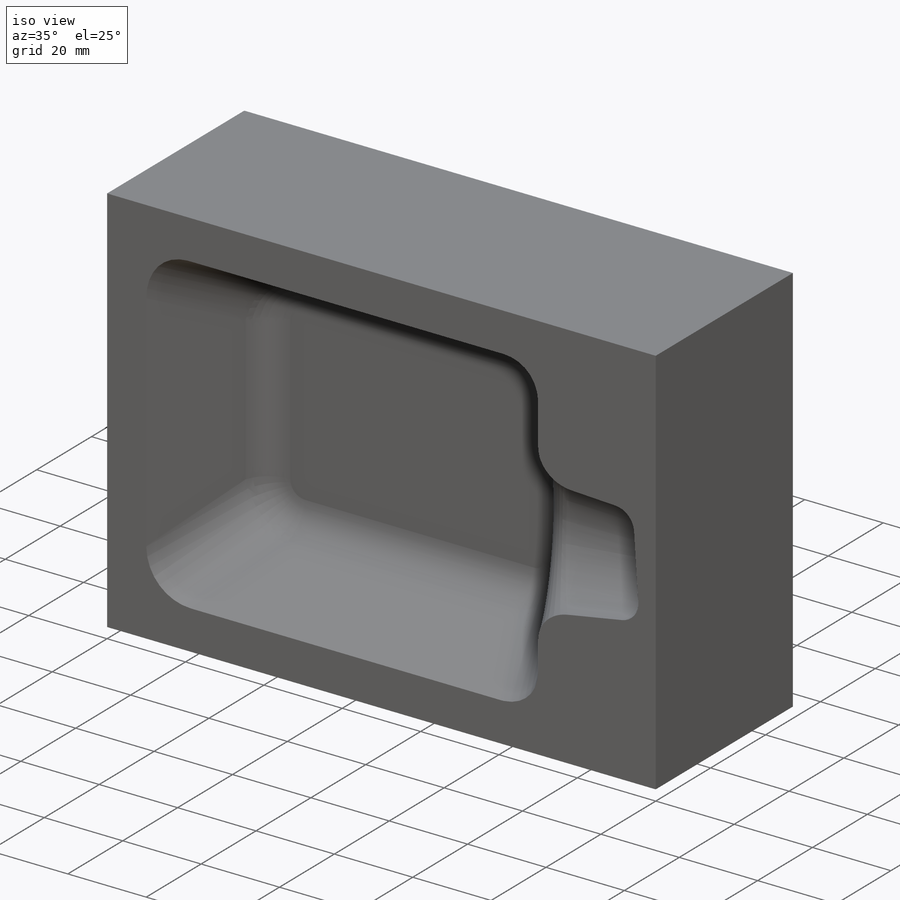
[diagram: iso view]
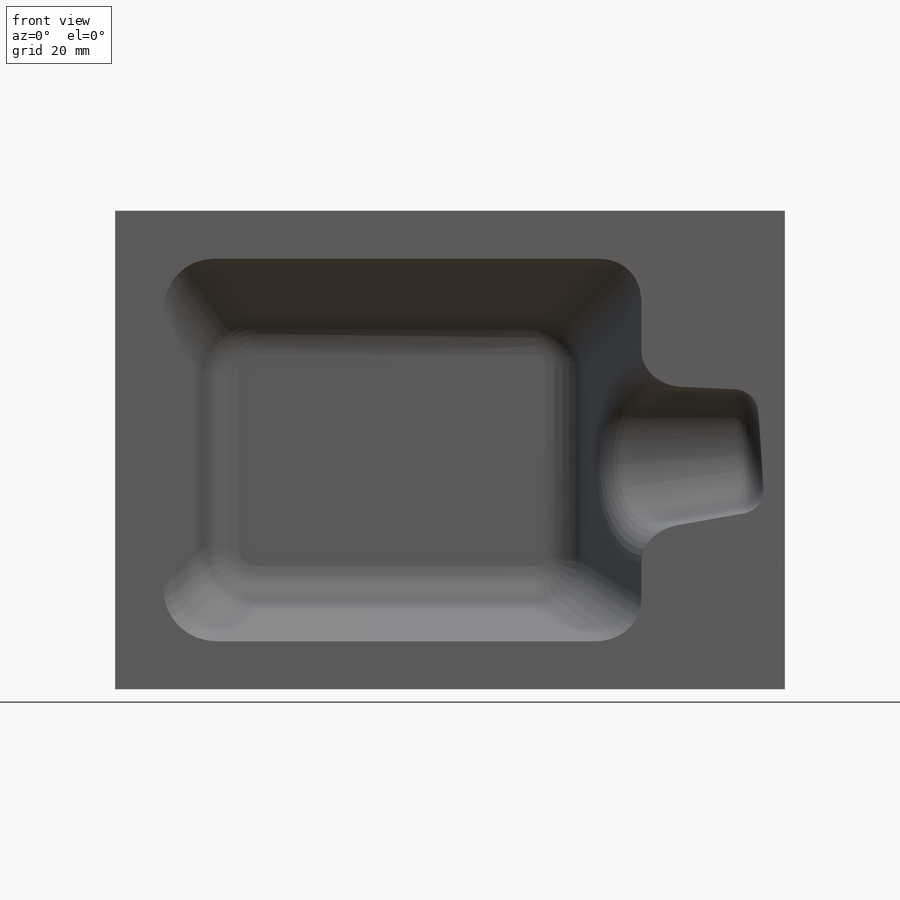
[diagram: front view]
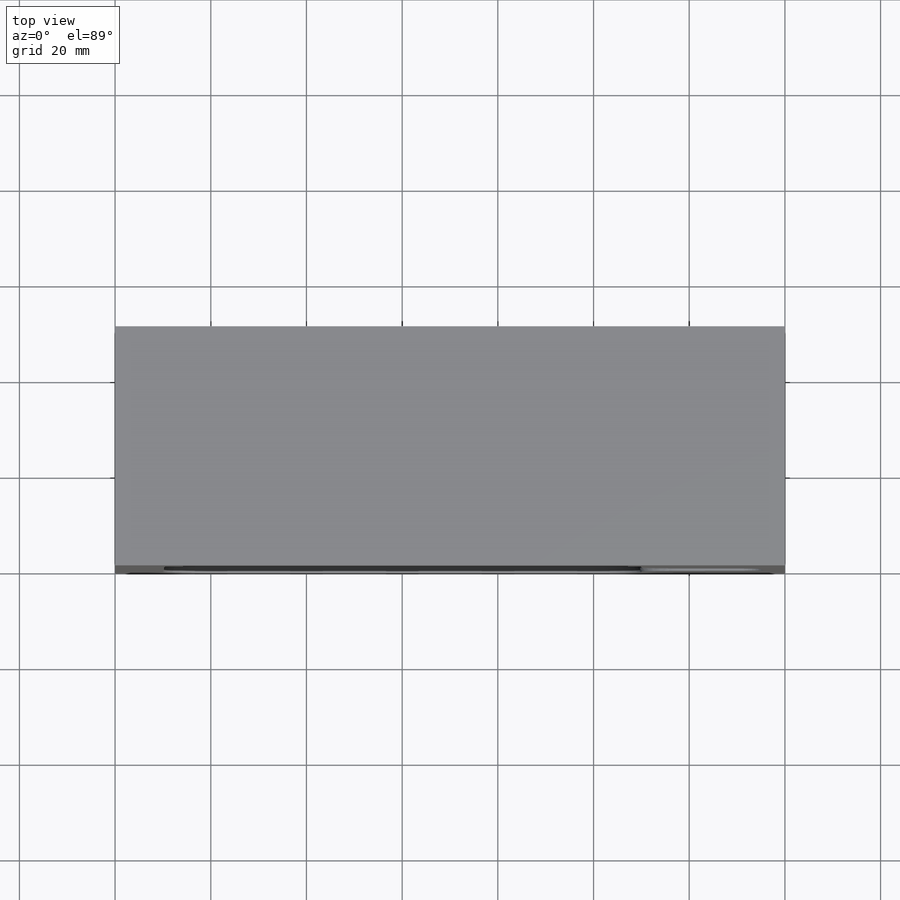
[diagram: top view]
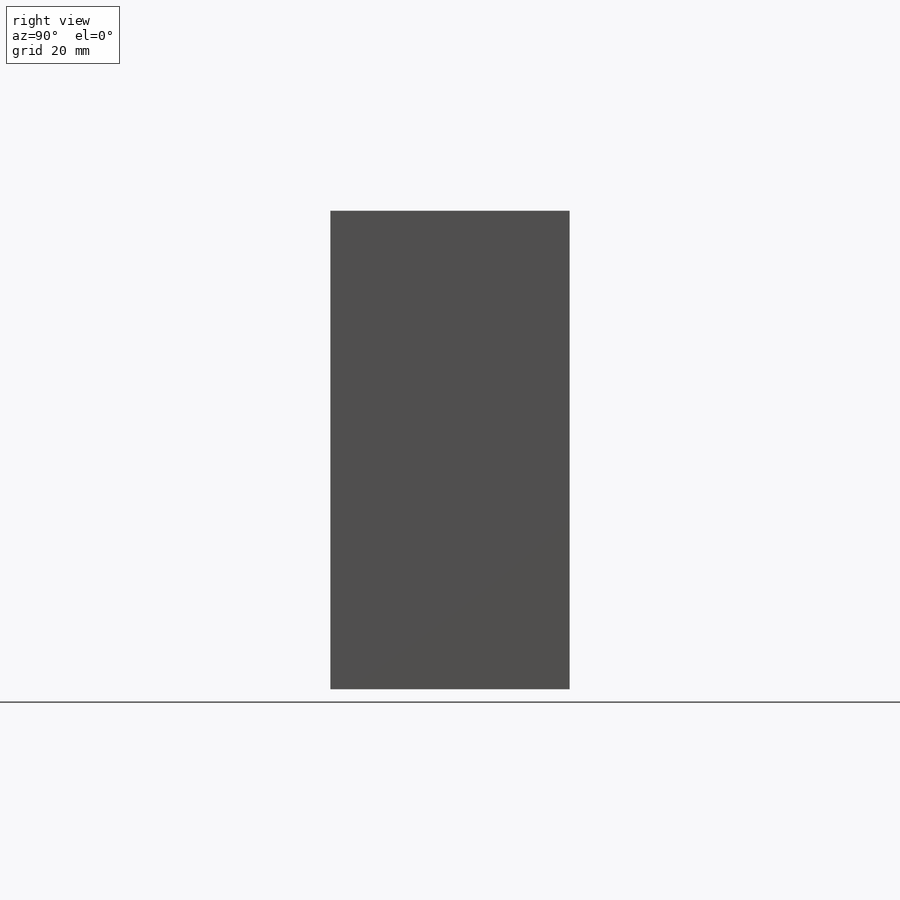
[diagram: right view]
SOLIDWORKS PART (.sldprt)
format: sldprt  version: not decoded by parser v0  size: 152,576 bytes
history: native  units: mm
features: fillet x5, plane x4, sketch x4, material x1, extrude x1, cut_revolve x1 (+9 scaffold rows collapsed)
feature tree (25):
  scaffold x9  (default folders/planes/origin — collapsed)
  material  "Material <not specified>"
  plane  "XY-plane"
  plane  "ZX-plane"
  plane  "YZ-plane"
  sketch  "Sketch2"  dims[D1=0.0mm]
  extrude  "Base-Extrude"  Depth=50mm
  sketch  "Sketch3"  dims[D1=10.0mm]
  plane  "Plane1"  Offset=30mm
  sketch  "Sketch4"  dims[D1=0.0mm]
  sketch  "Sketch5"  dims[c1.D1=~120.066648mm c2.D1=90.0deg]
  cut_revolve  "Cut-Revolve1"  Angle=360deg
  fillet  "Fillet8"  Radius=12mm
  fillet  "Fillet9"  Radius=10mm
  fillet  "Fillet10"  Radius=8mm
  fillet  "Fillet11"  Radius=8mm
  fillet  "Fillet12"  Radius=5mm
decode coverage: 11 of 11 modeling features carry decoded parameters
note: ~ marks probable driven/reference dimensions
note: suppression state not decoded; provenance and decode notes live in map.json
